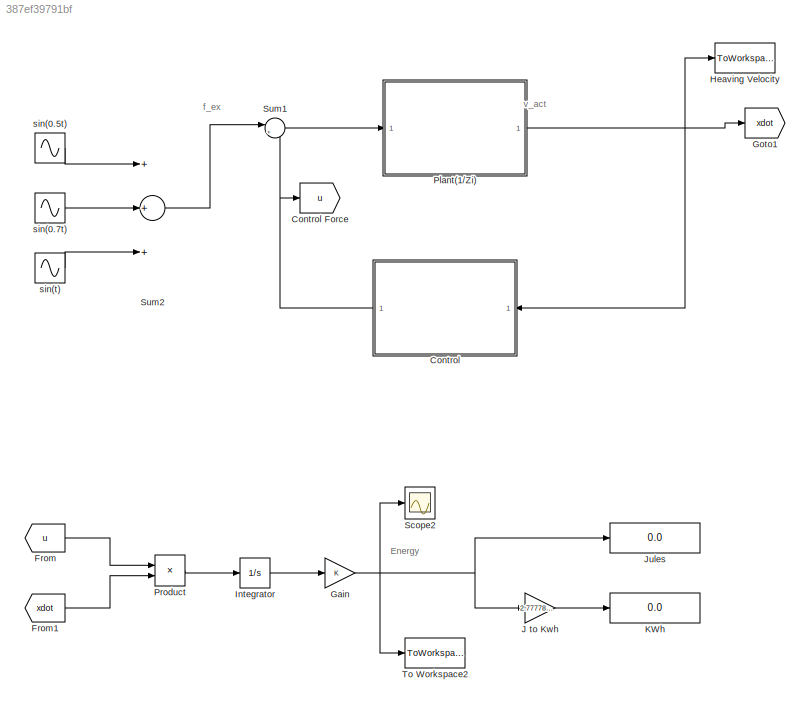
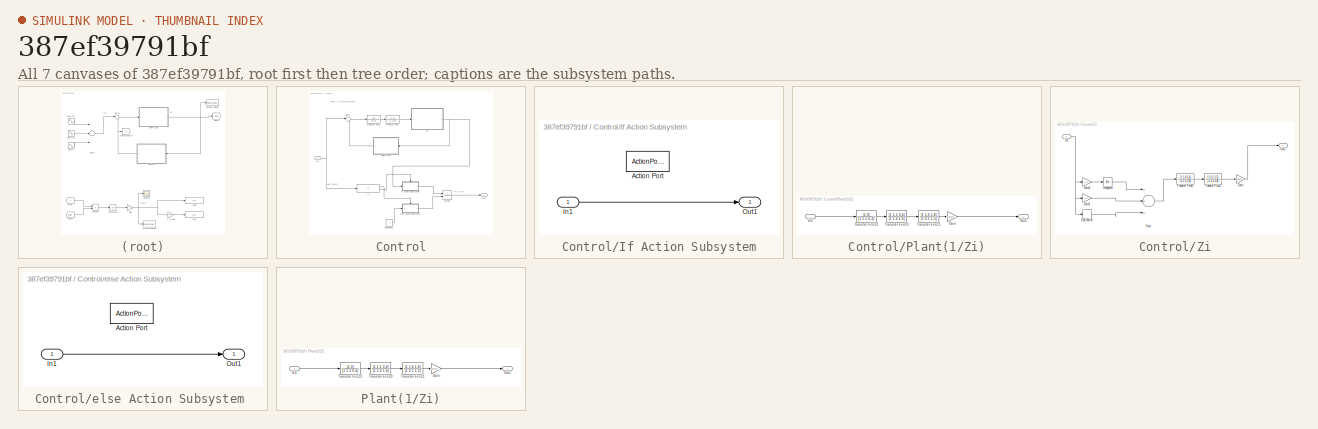
[diagram: thumbnail index - all 7 canvases of the model, root first then tree order]
MODEL slx_387ef39791bf
KIND model
CONFIG AbsTol = auto
CONFIG FixedStep = auto
CONFIG InitFcn = clear all
CONFIG MaxStep = auto
CONFIG MinStep = auto
CONFIG RelTol = 1e-3
CONFIG SampleTimeConstraint = Unconstrained
CONFIG Solver = ode45
CONFIG SolverMode = SingleTasking
CONFIG SolverName = ode45
CONFIG StartTime = 0.0
CONFIG StopFcn = figure(1)\nplot(energy)\nxlabel('Time (s)')\nylabel('Energy Extracted (Jules)')\ntitle('Energy Extracted')\n
CONFIG StopTime = 500
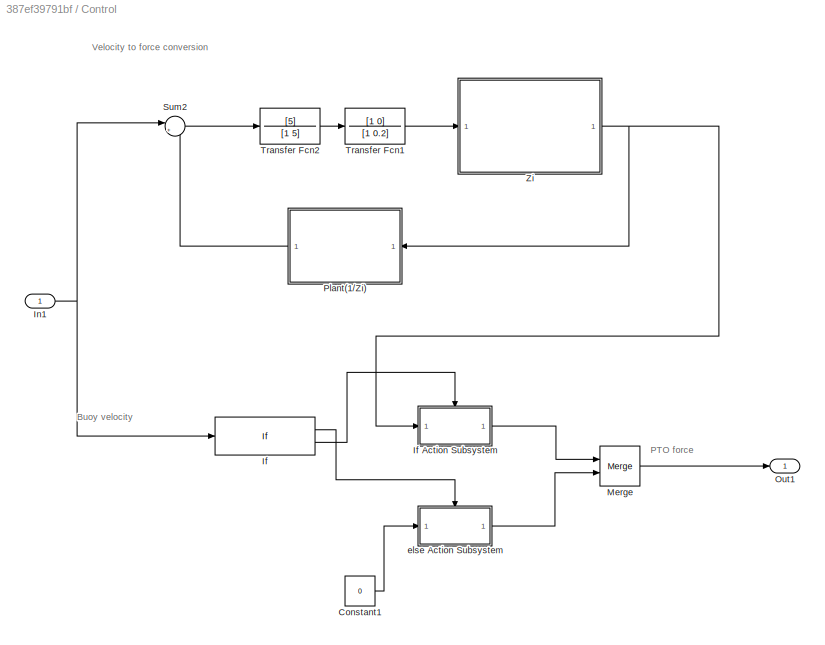
BLOCK [SubSystem] Control
  Ports = [1, 1]
  RequestExecContextInheritance = off
BLOCK [Goto] Control Force
  GotoTag = u
BLOCK [Constant] Control/Constant1
  Value = 0
BLOCK [If] Control/If
  IfExpression = u1 <=0
  Ports = [1, 2]
  ZeroCross = off
BLOCK [SubSystem] Control/If Action Subsystem
  Ports = [1, 1, 0, 0, 0, 0, 0, 1]
  RequestExecContextInheritance = off
  TreatAsAtomicUnit = on
BLOCK [ActionPort] Control/If Action Subsystem/Action Port
  ActionType = else
  InitializeStates = reset
  PropagateVarSize = During execution
BLOCK [Inport] Control/If Action Subsystem/In1
  IconDisplay = Port number
BLOCK [Outport] Control/If Action Subsystem/Out1
  IconDisplay = Port number
BLOCK [Inport] Control/In1
  IconDisplay = Port number
BLOCK [Merge] Control/Merge
  AllowUnequalInputPortWidths = on
  Ports = [2, 1]
BLOCK [Outport] Control/Out1
  IconDisplay = Port number
BLOCK [SubSystem] Control/Plant(1//Zi)
  Ports = [1, 1]
  RequestExecContextInheritance = off
BLOCK [Gain] Control/Plant(1//Zi)/Gain
  Gain = 1.8*10^-6
  OutDataTypeStr = Inherit: Inherit via internal rule
  ParamDataTypeStr = Inherit: Inherit via internal rule
  SaturateOnIntegerOverflow = off
BLOCK [Inport] Control/Plant(1//Zi)/In1
  IconDisplay = Port number
BLOCK [Outport] Control/Plant(1//Zi)/Out1
  IconDisplay = Port number
BLOCK [TransferFcn] Control/Plant(1//Zi)/Transfer Fcn10
  Denominator = [1 1.4 1.6]
  Numerator = [1 1.1 0.4]
BLOCK [TransferFcn] Control/Plant(1//Zi)/Transfer Fcn11
  Denominator = [1 0.1 1.5]
  Numerator = [1 1.6 1.8]
BLOCK [TransferFcn] Control/Plant(1//Zi)/Transfer Fcn12
  Denominator = [1 1.2 0.4]
  Numerator = [1 0]
BLOCK [Sum] Control/Sum2
  IconShape = round
  InputSameDT = off
  Inputs = |+-
  OutDataTypeStr = Inherit: Inherit via internal rule
  Ports = [2, 1]
  SaturateOnIntegerOverflow = off
BLOCK [TransferFcn] Control/Transfer Fcn1
  Denominator = [1 0.2]
  Numerator = [1 0]
BLOCK [TransferFcn] Control/Transfer Fcn2
  Denominator = [1 5]
  Numerator = [5]
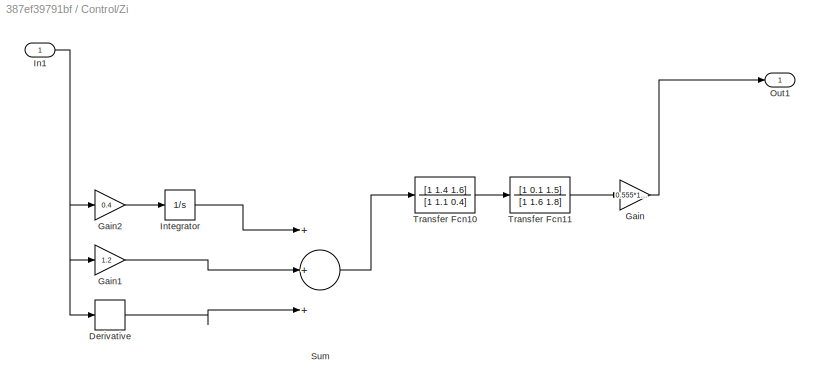
BLOCK [SubSystem] Control/Zi
  Ports = [1, 1]
  RequestExecContextInheritance = off
BLOCK [Derivative] Control/Zi/Derivative
BLOCK [Gain] Control/Zi/Gain
  Gain = 0.555*10^6
  OutDataTypeStr = Inherit: Inherit via internal rule
  ParamDataTypeStr = Inherit: Inherit via internal rule
  SaturateOnIntegerOverflow = off
BLOCK [Gain] Control/Zi/Gain1
  Gain = 1.2
  OutDataTypeStr = Inherit: Inherit via internal rule
  ParamDataTypeStr = Inherit: Inherit via internal rule
  SaturateOnIntegerOverflow = off
BLOCK [Gain] Control/Zi/Gain2
  Gain = 0.4
  OutDataTypeStr = Inherit: Inherit via internal rule
  ParamDataTypeStr = Inherit: Inherit via internal rule
  SaturateOnIntegerOverflow = off
BLOCK [Inport] Control/Zi/In1
  IconDisplay = Port number
BLOCK [Integrator] Control/Zi/Integrator
  Ports = [1, 1]
BLOCK [Outport] Control/Zi/Out1
  IconDisplay = Port number
BLOCK [Sum] Control/Zi/Sum
  InputSameDT = off
  Inputs = +++
  OutDataTypeStr = Inherit: Inherit via internal rule
  Ports = [3, 1]
  SaturateOnIntegerOverflow = off
BLOCK [TransferFcn] Control/Zi/Transfer Fcn10
  Denominator = [1 1.1 0.4]
  Numerator = [1 1.4 1.6]
BLOCK [TransferFcn] Control/Zi/Transfer Fcn11
  Denominator = [1 1.6 1.8]
  Numerator = [1 0.1 1.5]
BLOCK [SubSystem] Control/else Action Subsystem 
  Ports = [1, 1, 0, 0, 0, 0, 0, 1]
  RequestExecContextInheritance = off
  TreatAsAtomicUnit = on
BLOCK [ActionPort] Control/else Action Subsystem /Action Port
  ActionType = then
  InitializeStates = reset
  PropagateVarSize = During execution
BLOCK [Inport] Control/else Action Subsystem /In1
  IconDisplay = Port number
BLOCK [Outport] Control/else Action Subsystem /Out1
  IconDisplay = Port number
BLOCK [From] From
  GotoTag = u
BLOCK [From] From1
  GotoTag = xdot
BLOCK [Gain] Gain
  OutDataTypeStr = Inherit: Inherit via internal rule
  ParamDataTypeStr = Inherit: Inherit via internal rule
  SaturateOnIntegerOverflow = off
BLOCK [Goto] Goto1
  GotoTag = xdot
BLOCK [ToWorkspace] Heaving Velocity
  FixptAsFi = on
  MaxDataPoints = inf
  Ports = [1]
  SampleTime = -1
  Save2DSignal = 3-D array (concatenate along third dimension)
  SaveFormat = Timeseries
  VariableName = v_act
BLOCK [Integrator] Integrator
  Ports = [1, 1]
  ZeroCross = off
BLOCK [Gain] J to Kwh
  Gain = 2.77778e-7
  OutDataTypeStr = Inherit: Inherit via internal rule
  ParamDataTypeStr = Inherit: Inherit via internal rule
  SaturateOnIntegerOverflow = off
BLOCK [Display] Jules
  Decimation = 1
  Ports = [1]
BLOCK [Display] KWh
  Decimation = 1
  Ports = [1]
BLOCK [SubSystem] Plant(1//Zi)
  Ports = [1, 1]
  RequestExecContextInheritance = off
BLOCK [Gain] Plant(1//Zi)/Gain
  Gain = 1.8*10^-6
  OutDataTypeStr = Inherit: Inherit via internal rule
  ParamDataTypeStr = Inherit: Inherit via internal rule
  SaturateOnIntegerOverflow = off
BLOCK [Inport] Plant(1//Zi)/In1
  IconDisplay = Port number
BLOCK [Outport] Plant(1//Zi)/Out1
  IconDisplay = Port number
BLOCK [TransferFcn] Plant(1//Zi)/Transfer Fcn10
  Denominator = [1 1.4 1.6]
  Numerator = [1 1.1 0.4]
BLOCK [TransferFcn] Plant(1//Zi)/Transfer Fcn11
  Denominator = [1 0.1 1.5]
  Numerator = [1 1.6 1.8]
BLOCK [TransferFcn] Plant(1//Zi)/Transfer Fcn12
  Denominator = [1 1.2 0.4]
  Numerator = [1 0]
BLOCK [Product] Product
  InputSameDT = off
  OutDataTypeStr = Inherit: Inherit via internal rule
  Ports = [2, 1]
  RndMeth = Floor
  SaturateOnIntegerOverflow = off
BLOCK [Scope] Scope2
  Floating = off
  NumInputPorts = 1
  Ports = [1]
  SaveName = ScopeData2
  TimeRange = 100
  YMax = 2.05e+09
  YMin = 1.89e+09
BLOCK [Sum] Sum1
  IconShape = round
  InputSameDT = off
  Inputs = |+-
  OutDataTypeStr = Inherit: Inherit via internal rule
  Ports = [2, 1]
  SaturateOnIntegerOverflow = off
BLOCK [Sum] Sum2
  InputSameDT = off
  Inputs = +++
  OutDataTypeStr = Inherit: Inherit via internal rule
  Ports = [3, 1]
  SaturateOnIntegerOverflow = off
BLOCK [ToWorkspace] To Workspace2
  FixptAsFi = on
  MaxDataPoints = inf
  Ports = [1]
  SampleTime = -1
  Save2DSignal = 3-D array (concatenate along third dimension)
  SaveFormat = Timeseries
  VariableName = energy
BLOCK [Sin] sin(0.5t)
  Amplitude = 5*10^5
  Frequency = .5
  Ports = [0, 1]
  SampleTime = 0
BLOCK [Sin] sin(0.7t)
  Amplitude = 5*10^5
  Frequency = .7
  Ports = [0, 1]
  SampleTime = 0
BLOCK [Sin] sin(t)
  Amplitude = 5*10^5
  Ports = [0, 1]
  SampleTime = 0
ANNOTATION (root): Energy
ANNOTATION (root): f_ex
ANNOTATION (root): v_act
ANNOTATION Control: Buoy velocity
ANNOTATION Control: PTO force
ANNOTATION Control: Velocity to force conversion
LINE Control/Constant1:1 -> Control/else Action Subsystem :1
LINE Control/If Action Subsystem/In1:1 -> Control/If Action Subsystem/Out1:1
LINE Control/If Action Subsystem:1 -> Control/Merge:1
LINE Control/If:1 -> Control/else Action Subsystem :ifaction
LINE Control/If:2 -> Control/If Action Subsystem:ifaction
NET Control/In1:1 -> Control/If:1, Control/Sum2:1
LINE Control/Merge:1 -> Control/Out1:1
LINE Control/Plant(1//Zi)/Gain:1 -> Control/Plant(1//Zi)/Out1:1
LINE Control/Plant(1//Zi)/In1:1 -> Control/Plant(1//Zi)/Transfer Fcn12:1
LINE Control/Plant(1//Zi)/Transfer Fcn10:1 -> Control/Plant(1//Zi)/Transfer Fcn11:1
LINE Control/Plant(1//Zi)/Transfer Fcn11:1 -> Control/Plant(1//Zi)/Gain:1
LINE Control/Plant(1//Zi)/Transfer Fcn12:1 -> Control/Plant(1//Zi)/Transfer Fcn10:1
LINE Control/Plant(1//Zi):1 -> Control/Sum2:2
LINE Control/Sum2:1 -> Control/Transfer Fcn2:1
LINE Control/Transfer Fcn1:1 -> Control/Zi:1
LINE Control/Transfer Fcn2:1 -> Control/Transfer Fcn1:1
LINE Control/Zi/Derivative:1 -> Control/Zi/Sum:3
LINE Control/Zi/Gain1:1 -> Control/Zi/Sum:2
LINE Control/Zi/Gain2:1 -> Control/Zi/Integrator:1
LINE Control/Zi/Gain:1 -> Control/Zi/Out1:1
NET Control/Zi/In1:1 -> Control/Zi/Derivative:1, Control/Zi/Gain1:1, Control/Zi/Gain2:1
LINE Control/Zi/Integrator:1 -> Control/Zi/Sum:1
LINE Control/Zi/Sum:1 -> Control/Zi/Transfer Fcn10:1
LINE Control/Zi/Transfer Fcn10:1 -> Control/Zi/Transfer Fcn11:1
LINE Control/Zi/Transfer Fcn11:1 -> Control/Zi/Gain:1
NET Control/Zi:1 -> Control/If Action Subsystem:1, Control/Plant(1//Zi):1
LINE Control/else Action Subsystem /In1:1 -> Control/else Action Subsystem /Out1:1
LINE Control/else Action Subsystem :1 -> Control/Merge:2
NET Control:1 -> Control Force:1, Sum1:2
LINE From1:1 -> Product:2
LINE From:1 -> Product:1
NET Gain:1 -> J to Kwh:1, Jules:1, Scope2:1, To Workspace2:1
LINE Integrator:1 -> Gain:1
LINE J to Kwh:1 -> KWh:1
LINE Plant(1//Zi)/Gain:1 -> Plant(1//Zi)/Out1:1
LINE Plant(1//Zi)/In1:1 -> Plant(1//Zi)/Transfer Fcn12:1
LINE Plant(1//Zi)/Transfer Fcn10:1 -> Plant(1//Zi)/Transfer Fcn11:1
LINE Plant(1//Zi)/Transfer Fcn11:1 -> Plant(1//Zi)/Gain:1
LINE Plant(1//Zi)/Transfer Fcn12:1 -> Plant(1//Zi)/Transfer Fcn10:1
NET Plant(1//Zi):1 -> Control:1, Goto1:1, Heaving Velocity:1
LINE Product:1 -> Integrator:1
LINE Sum1:1 -> Plant(1//Zi):1
LINE Sum2:1 -> Sum1:1
LINE sin(0.5t):1 -> Sum2:1
LINE sin(0.7t):1 -> Sum2:2
LINE sin(t):1 -> Sum2:3
note: NET lines group one-source signal fan-out (src -> all destinations, sorted); 1:1 wires keep LINE
